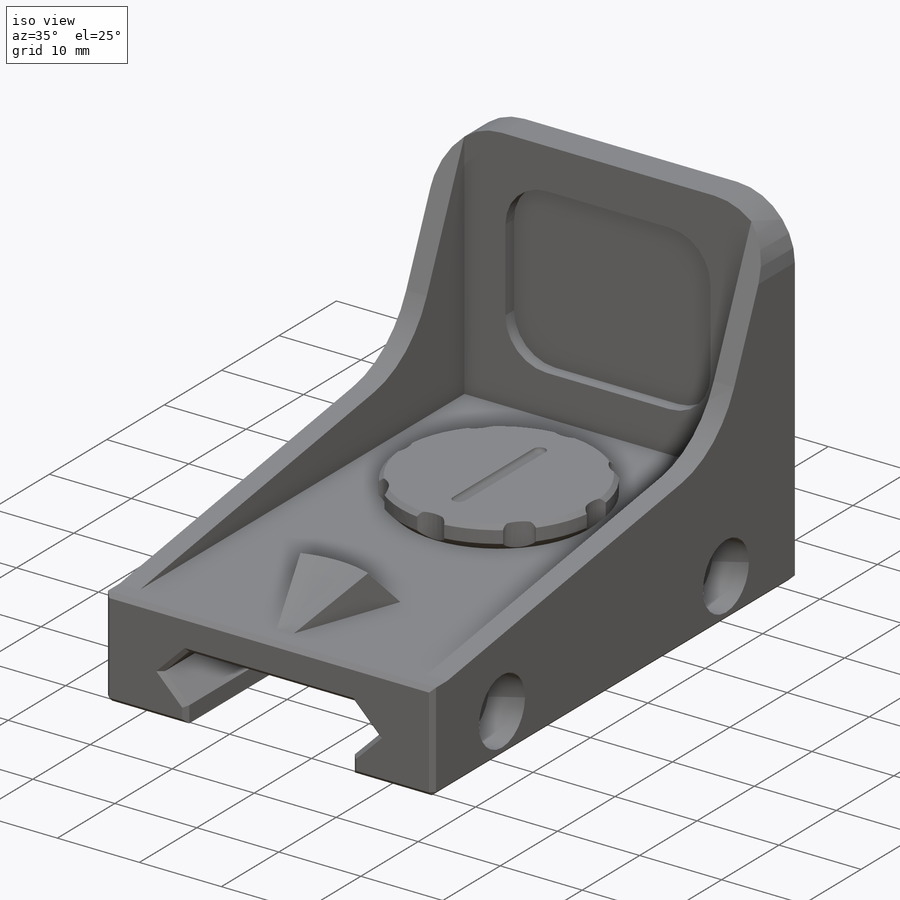
[diagram: iso view]
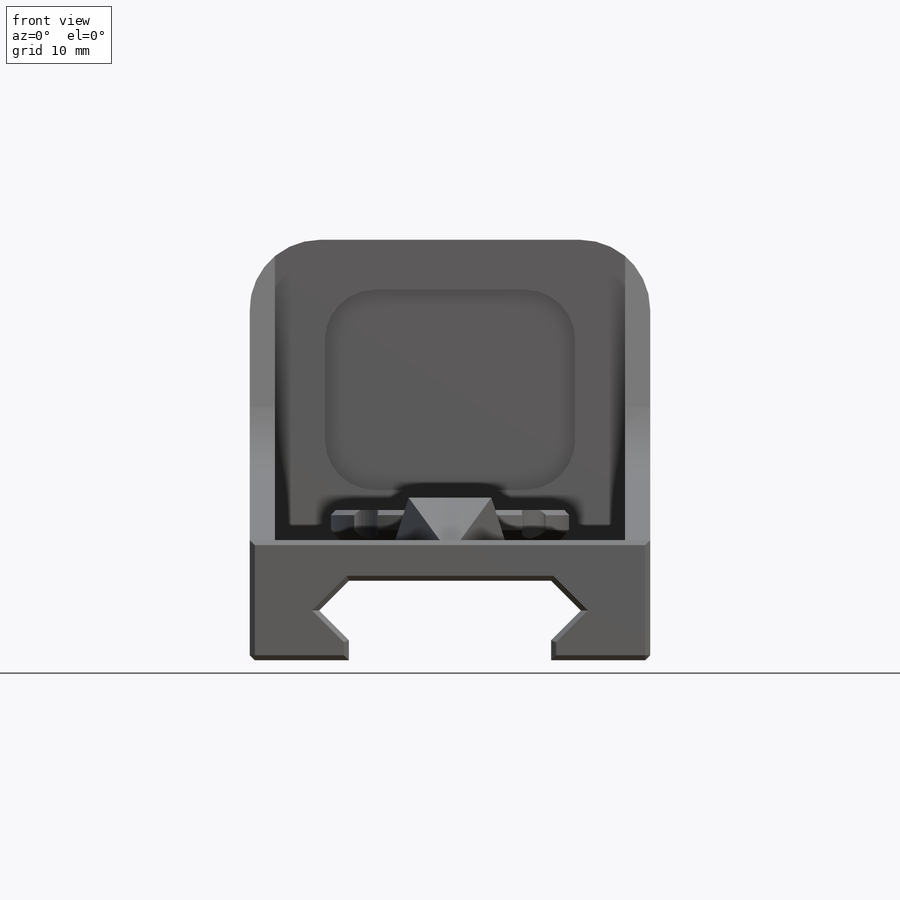
[diagram: front view]
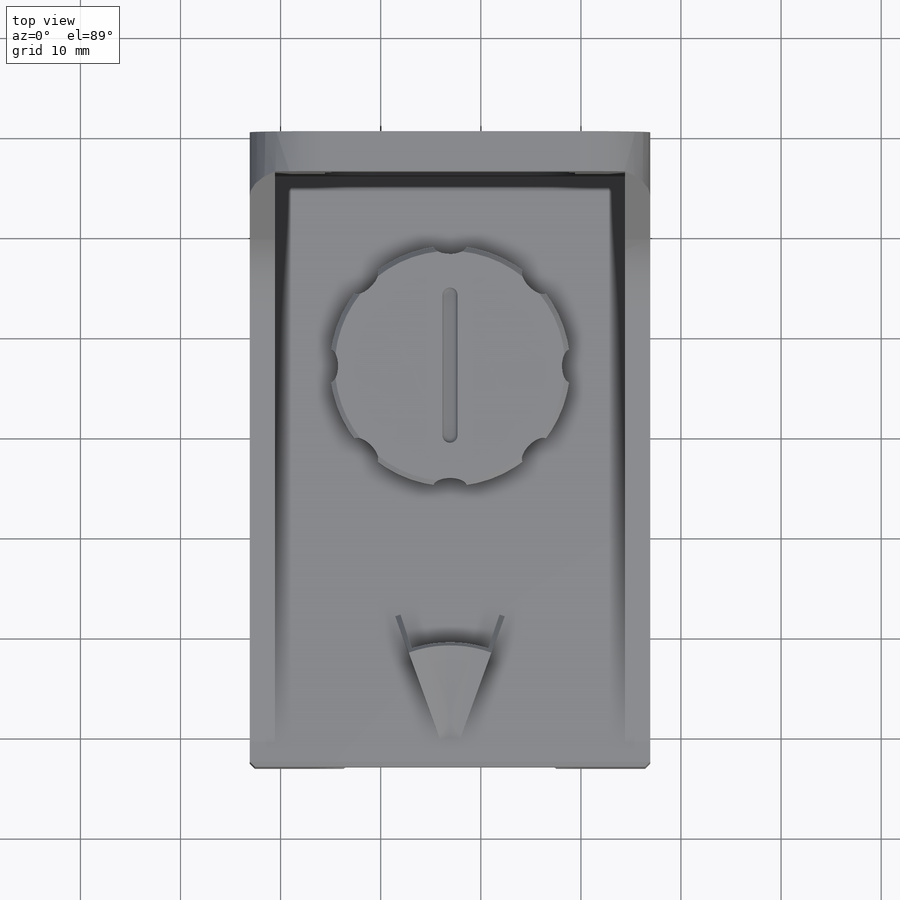
[diagram: top view]
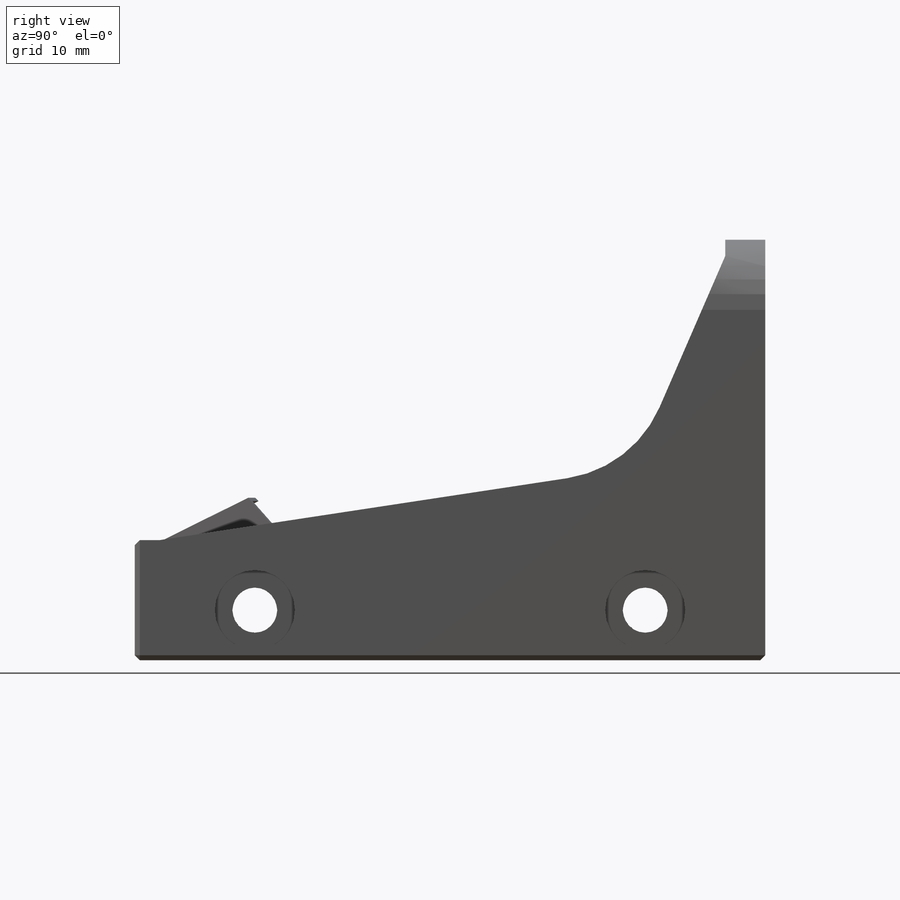
[diagram: right view]
SOLIDWORKS PART (.sldprt)
format: sldprt  version: not decoded by parser v0  size: 679,936 bytes
history: native  units: mm
features: sketch x15, extrude x5, cut_extrude x5, plane x4, fillet x3, chamfer x3, mirror x2, material x1, revolve x1, cut_revolve x1, hole x1, pattern_linear x1, sweep x1, pattern_circular x1 (+9 scaffold rows collapsed)
feature tree (53):
  scaffold x9  (default folders/planes/origin — collapsed)
  material  "Material <nicht festgelegt>"
  plane  "Ebene vorne"
  plane  "Ebene oben"
  plane  "Ebene rechts"
  sketch  "Skizze1"  dims[D1=12.0mm D2=40.0mm]
  extrude  "Aufsatz-Linear austragen1"  Depth=63mm
  sketch  "Skizze2"  dims[c1.D1=4.2mm c1.D2=20.2mm c1.D3=~2.969848mm c2.D3=90.0deg c3.D3=4.2mm c4.D3=135.0deg c4.D4=~2.969848mm c5.D4=135.0deg c6.D4=9.9mm c6.D5=2.0mm]
  cut_extrude  "Schnitt-Linear austragen2"  [1 undecoded]
  plane  "Ebene1"
  sketch  "Skizze7"  dims[c1.D1=13.0mm c1.D2=10.0mm c1.D3=10.0mm c2.D3=25.0deg c2.D4=3.0mm]
  revolve  "Rotation1"  Angle=20deg
  sketch  "Skizze10"  dims[c1.D1=20.0deg c2.D1=11.0mm c3.D1=25.0deg c4.D1=~10.777621mm c5.D1=25.0deg c5.D2=~13.745935mm]
  cut_revolve  "Schnitt-Rotation1"  Angle=18deg
  hole  "Stirnsenkung für M3"  Diameter=4.5mm Depth=40mm
  sketch  "Skizze12"  dims[D1=12.0mm D2=5.0mm]
  sketch  "Skizze11"  dims[hole-wizard template sketch: 41 standard entries collapsed; hole parameters kept: c12.Bohrerdurchmesser=4.5mm c12.Bohrungstiefe=40.0mm c12.Senkdurchmesser2=8.0mm c12.Senktiefe2=4.4mm]
  sketch  "Skizze13"  dims[c1.D1=7.0mm c1.D2=6.5mm c2.D2=0.0deg]
  cut_extrude  "Schnitt-Linear austragen3"  Depth=3.2mm
  pattern_linear  "Lineares Muster2"  Count1=2 Count2=1 Spacing1=39mm Spacing2=10mm
  sketch  "Skizze14"  dims[c1.D1=43.0mm c1.D2=30.0mm c1.D3=3.3mm c2.D1=55.0mm]
  extrude  "Aufsatz-Linear austragen2"  Depth=2.5mm
  sketch  "Skizze15"  dims[D1=4.0mm D2=2.5mm]
  extrude  "Aufsatz-Linear austragen3"  [1 undecoded]
  sketch  "Skizze16"  dims[D4=5.0mm D1=7.5mm D2=5.0mm D3=5.0mm]
  cut_extrude  "Schnitt-Linear austragen4"  [1 undecoded]
  sketch  "Skizze18"  dims[D1=1.0mm D2=1.5mm]
  sweep  "Schnitt-Austragung2"
  fillet  "Verrundung4"  Radius=12mm
  sketch  "Skizze21"
  extrude  "Aufsatz-Linear austragen4"  Depth=3mm
  mirror  "Spiegeln8"
  mirror  "Spiegeln10"
  fillet  "Verrundung7"  Radius=7mm
  chamfer  "Fase1"  Distance=0.5mm Angle=45deg
  sketch  "Skizze22"  dims[D1=24.0mm D2=40.0mm]
  extrude  "Aufsatz-Linear austragen5"  Depth=3mm
  chamfer  "Fase2"  Distance=0.5mm Angle=45deg
  chamfer  "Fase3"  Distance=1mm Angle=45deg
  sketch  "Skizze25"
  cut_extrude  "Schnitt-Linear austragen6"  Depth=5mm
  pattern_circular  "Kreismuster6"  Count=8 Angle=360deg
  sketch  "Skizze26"  dims[D1=1.5mm D2=14.0mm]
  cut_extrude  "Schnitt-Linear austragen7"  Depth=0.5mm
  fillet  "Verrundung8"  Radius=0.5mm
decode coverage: 31 of 39 modeling features carry decoded parameters
note: ~ marks probable driven/reference dimensions
note: 3 parameter values undecoded
summary: no parameter record found for 3 features
note: suppression state not decoded; provenance and decode notes live in map.json
